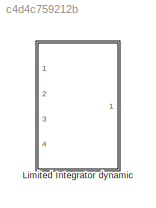
MODEL slx_c4d4c759212b
KIND model
CONFIG PostLoadFcn = , if any(exist('dsrtsu_mdlpostloadfcn', 'file') == [2, 3, 6]), try dsrtsu_mdlpostloadfcn('Execute', bdroot); catch fprintf('Error in PostLoadFcn (dsrtsu_mdlpostloadfcn) for model "%s":\n %s\n', bdroot, lasterr); end, end, \n
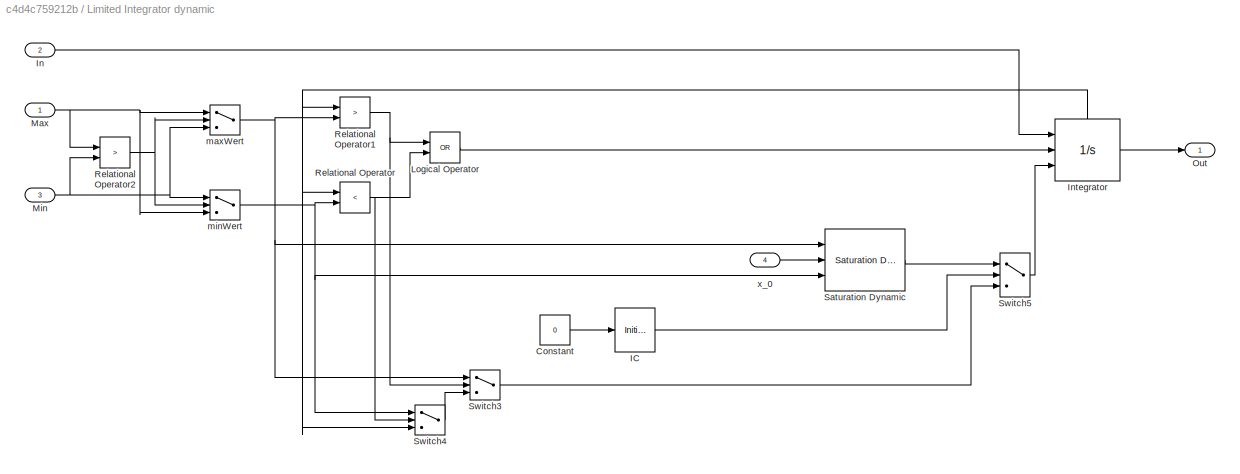
BLOCK [SubSystem] Limited Integrator dynamic
  FunctionWithSeparateData = off
  MaskHideContents = off
  MinAlgLoopOccurrences = off
  Opaque = off
  Ports = [4, 1]
  PropExecContextOutsideSubsystem = off
  RTWSystemCode = Auto
  RequestExecContextInheritance = off
BLOCK [Constant] Limited Integrator dynamic/Constant
  Value = 0
BLOCK [InitialCondition] Limited Integrator dynamic/IC
BLOCK [Inport] Limited Integrator dynamic/In
  IconDisplay = Port number
  Port = 2
BLOCK [Integrator] Limited Integrator dynamic/Integrator
  ExternalReset = level
  InitialConditionSource = external
  Ports = [3, 1, 0, 0, 1]
  ShowStatePort = on
BLOCK [Logic] Limited Integrator dynamic/Logical Operator
  AllPortsSameDT = off
  Operator = OR
  OutDataTypeStr = boolean
  Ports = [2, 1]
BLOCK [Inport] Limited Integrator dynamic/Max
  IconDisplay = Port number
BLOCK [Inport] Limited Integrator dynamic/Min
  IconDisplay = Port number
  Port = 3
BLOCK [Outport] Limited Integrator dynamic/Out
  IconDisplay = Port number
BLOCK [RelationalOperator] Limited Integrator dynamic/Relational Operator
  InputSameDT = off
  Operator = <
  OutDataTypeStr = boolean
  Ports = [2, 1]
BLOCK [RelationalOperator] Limited Integrator dynamic/Relational Operator1
  InputSameDT = off
  Operator = >
  OutDataTypeStr = boolean
  Ports = [2, 1]
BLOCK [RelationalOperator] Limited Integrator dynamic/Relational Operator2
  InputSameDT = off
  Operator = >
  OutDataTypeStr = boolean
  Ports = [2, 1]
BLOCK [Reference] Limited Integrator dynamic/Saturation Dynamic  REF=simulink/Discontinuities/Saturation
Dynamic
  DoSatur = off
  LockScale = off
  OutDataType = fixdt(1, 16)
  OutDataTypeStr = Inherit: Same as second input
  OutMax = []
  OutMin = []
  OutScaling = 2^-10
  OutputDataTypeScalingMode = Same as second input
  Ports = [3, 1]
  RndMeth = Floor
  SourceBlock = simulink/Discontinuities/Saturation\nDynamic
  SourceType = Saturation Dynamic
BLOCK [Switch] Limited Integrator dynamic/Switch3
  Criteria = u2 ~= 0
  InputSameDT = off
  SaturateOnIntegerOverflow = off
BLOCK [Switch] Limited Integrator dynamic/Switch4
  Criteria = u2 ~= 0
  InputSameDT = off
  SaturateOnIntegerOverflow = off
BLOCK [Switch] Limited Integrator dynamic/Switch5
  Criteria = u2 ~= 0
  InputSameDT = off
  SaturateOnIntegerOverflow = off
BLOCK [Switch] Limited Integrator dynamic/maxWert
  Criteria = u2 ~= 0
  InputSameDT = off
  SaturateOnIntegerOverflow = off
BLOCK [Switch] Limited Integrator dynamic/minWert
  Criteria = u2 ~= 0
  InputSameDT = off
  SaturateOnIntegerOverflow = off
BLOCK [Inport] Limited Integrator dynamic/x_0
  IconDisplay = Port number
  Port = 4
LINE Limited Integrator dynamic/Constant:1 -> Limited Integrator dynamic/IC:1
LINE Limited Integrator dynamic/IC:1 -> Limited Integrator dynamic/Switch5:2
LINE Limited Integrator dynamic/In:1 -> Limited Integrator dynamic/Integrator:1
LINE Limited Integrator dynamic/Integrator:1 -> Limited Integrator dynamic/Out:1
NET Limited Integrator dynamic/Integrator:state -> Limited Integrator dynamic/Relational Operator1:1, Limited Integrator dynamic/Relational Operator:1, Limited Integrator dynamic/Switch4:3
LINE Limited Integrator dynamic/Logical Operator:1 -> Limited Integrator dynamic/Integrator:2
NET Limited Integrator dynamic/Max:1 -> Limited Integrator dynamic/Relational Operator2:1, Limited Integrator dynamic/maxWert:1, Limited Integrator dynamic/minWert:3
NET Limited Integrator dynamic/Min:1 -> Limited Integrator dynamic/Relational Operator2:2, Limited Integrator dynamic/maxWert:3, Limited Integrator dynamic/minWert:1
NET Limited Integrator dynamic/Relational Operator1:1 -> Limited Integrator dynamic/Logical Operator:1, Limited Integrator dynamic/Switch3:2
NET Limited Integrator dynamic/Relational Operator2:1 -> Limited Integrator dynamic/maxWert:2, Limited Integrator dynamic/minWert:2
NET Limited Integrator dynamic/Relational Operator:1 -> Limited Integrator dynamic/Logical Operator:2, Limited Integrator dynamic/Switch4:2
LINE Limited Integrator dynamic/Saturation Dynamic:1 -> Limited Integrator dynamic/Switch5:1
LINE Limited Integrator dynamic/Switch3:1 -> Limited Integrator dynamic/Switch5:3
LINE Limited Integrator dynamic/Switch4:1 -> Limited Integrator dynamic/Switch3:3
LINE Limited Integrator dynamic/Switch5:1 -> Limited Integrator dynamic/Integrator:3
NET Limited Integrator dynamic/maxWert:1 -> Limited Integrator dynamic/Relational Operator1:2, Limited Integrator dynamic/Saturation Dynamic:1, Limited Integrator dynamic/Switch3:1
NET Limited Integrator dynamic/minWert:1 -> Limited Integrator dynamic/Relational Operator:2, Limited Integrator dynamic/Saturation Dynamic:3, Limited Integrator dynamic/Switch4:1
LINE Limited Integrator dynamic/x_0:1 -> Limited Integrator dynamic/Saturation Dynamic:2
note: NET lines group one-source signal fan-out (src -> all destinations, sorted); 1:1 wires keep LINE
